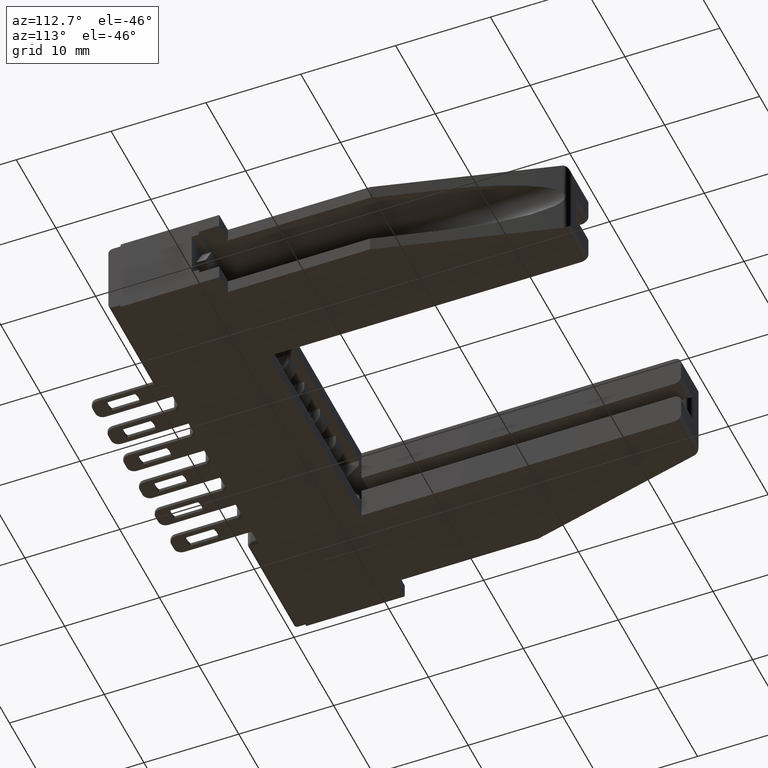
[diagram: clean part render]
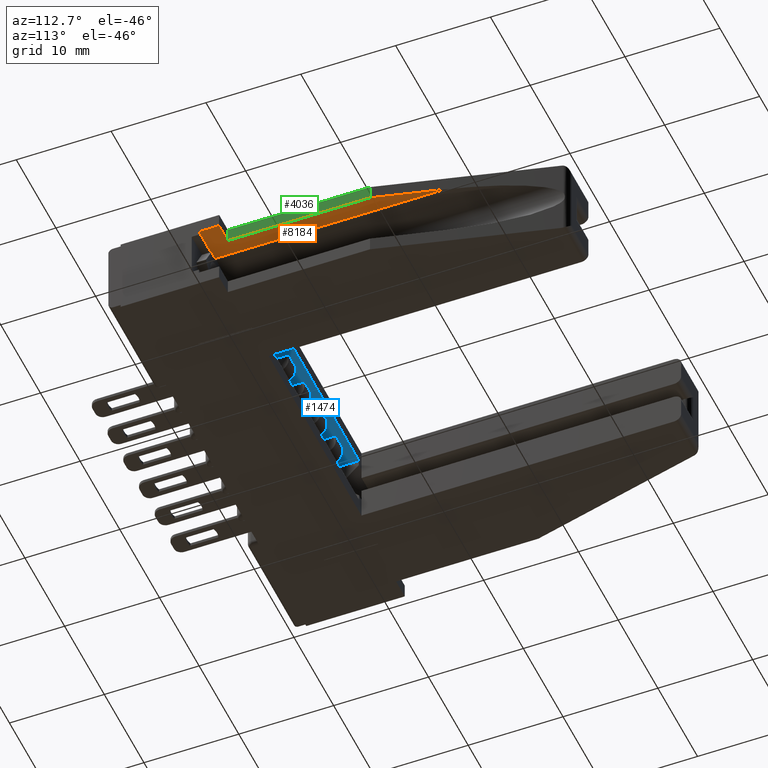
[diagram: same view with three faces highlighted in distinct colors, each labeled with its STEP entity id]
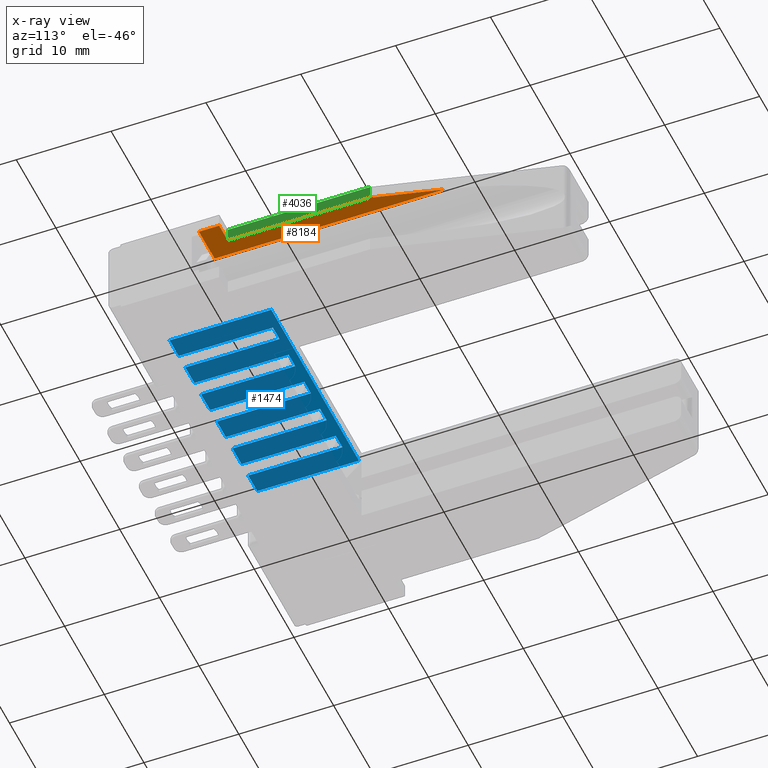
[diagram: x-ray of the same camera — body ghosted, the three highlighted faces saturated]
A machine part, auxiliary view with three faces highlighted in distinct colors.
The next image is the same camera in x-ray (body ghosted, the three faces saturated) — at least one of them is partly hidden behind the body in this view.
Their STEP definitions:

[orange] entity #8184 — the highlighted planar face has unit normal (0, 0, 1).
#93 = FACE_OUTER_BOUND ( 'NONE', #7524, .T. ) ;
#161 = LINE ( 'NONE', #10610, #9420 ) ;
#331 = LINE ( 'NONE', #9062, #10338 ) ;
#597 = DIRECTION ( 'NONE',  ( 4.211209965453280200E-016, 1.000000000000000000, 1.690917325168900100E-017 ) ) ;
#1309 = EDGE_CURVE ( 'NONE', #1538, #10528, #7996, .T. ) ;
#1469 = CARTESIAN_POINT ( 'NONE',  ( 0.0000000000000000000, 0.2099999999999999100, -0.2839999999999999700 ) ) ;
#1538 = VERTEX_POINT ( 'NONE', #4783 ) ;
#1719 = EDGE_CURVE ( 'NONE', #7004, #6549, #161, .T. ) ;
#1893 = CARTESIAN_POINT ( 'NONE',  ( 0.1549999999999998600, 1.079729729729725700, -0.2839999999999998100 ) ) ;
#2456 = ORIENTED_EDGE ( 'NONE', *, *, #3828, .T. ) ;
#2526 = CARTESIAN_POINT ( 'NONE',  ( 0.08600000000000011800, 0.7999999999999976000, -0.2840000000000000900 ) ) ;
#2564 = DIRECTION ( 'NONE',  ( -4.500600642748225000E-016, -1.000000000000000000, -1.690917325168896400E-017 ) ) ;
#2679 = ORIENTED_EDGE ( 'NONE', *, *, #3245, .T. ) ;
#2873 = LINE ( 'NONE', #1469, #5914 ) ;
#3245 = EDGE_CURVE ( 'NONE', #4101, #7004, #7802, .T. ) ;
#3519 = CARTESIAN_POINT ( 'NONE',  ( 0.0000000000000000000, -0.3075443462566648200, -0.2839999999999998100 ) ) ;
#3626 = DIRECTION ( 'NONE',  ( 1.000000000000000000, 4.211209965453250600E-016, 2.218671295934087800E-031 ) ) ;
#3828 = EDGE_CURVE ( 'NONE', #7875, #10528, #2873, .T. ) ;
#4101 = VERTEX_POINT ( 'NONE', #4484 ) ;
#4277 = ORIENTED_EDGE ( 'NONE', *, *, #1719, .T. ) ;
#4287 = CARTESIAN_POINT ( 'NONE',  ( 0.0000000000000000000, 0.2099999999999999100, -0.2839999999999999700 ) ) ;
#4484 = CARTESIAN_POINT ( 'NONE',  ( 0.1549999999999998600, 0.1259999999999999500, -0.2839999999999998100 ) ) ;
#4783 = CARTESIAN_POINT ( 'NONE',  ( 0.0000000000000000000, 0.1259999999999999500, -0.2839999999999999200 ) ) ;
#5140 = ORIENTED_EDGE ( 'NONE', *, *, #10056, .T. ) ;
#5315 = CARTESIAN_POINT ( 'NONE',  ( 0.1549999999999998600, -0.3075443462566648200, -0.2839999999999999700 ) ) ;
#5470 = CARTESIAN_POINT ( 'NONE',  ( -0.2220049579111977000, -0.3075443462566648200, -0.2840000000000000900 ) ) ;
#5618 = VECTOR ( 'NONE', #8993, 39.37007874015748100 ) ;
#5738 = AXIS2_PLACEMENT_3D ( 'NONE', #5470, #9188, #8238 ) ;
#5854 = LINE ( 'NONE', #2526, #11501 ) ;
#5914 = VECTOR ( 'NONE', #5997, 39.37007874015748100 ) ;
#5997 = DIRECTION ( 'NONE',  ( -1.000000000000000000, -4.211209965453250600E-016, -2.218671295934087800E-031 ) ) ;
#5999 = DIRECTION ( 'NONE',  ( -0.2394884713086047100, -0.9708992080078484600, -1.641710291813239300E-017 ) ) ;
#6362 = ORIENTED_EDGE ( 'NONE', *, *, #1309, .F. ) ;
#6549 = VERTEX_POINT ( 'NONE', #7451 ) ;
#7004 = VERTEX_POINT ( 'NONE', #1893 ) ;
#7451 = CARTESIAN_POINT ( 'NONE',  ( 0.08600000000000011800, 0.7999999999999976000, -0.2840000000000000900 ) ) ;
#7524 = EDGE_LOOP ( 'NONE', ( #2456, #6362, #5140, #2679, #4277, #9110 ) ) ;
#7802 = LINE ( 'NONE', #5315, #5618 ) ;
#7875 = VERTEX_POINT ( 'NONE', #11490 ) ;
#7996 = LINE ( 'NONE', #3519, #10183 ) ;
#8184 = ADVANCED_FACE ( 'NONE', ( #93 ), #10155, .F. ) ;
#8238 = DIRECTION ( 'NONE',  ( -1.000000000000000000, -4.211209965453250600E-016, -2.218671295934087800E-031 ) ) ;
#8993 = DIRECTION ( 'NONE',  ( 4.211209965453280200E-016, 1.000000000000000000, 1.690917325168900100E-017 ) ) ;
#9062 = CARTESIAN_POINT ( 'NONE',  ( -0.2220049579111977000, 0.1259999999999998100, -0.2839999999999998100 ) ) ;
#9110 = ORIENTED_EDGE ( 'NONE', *, *, #11212, .T. ) ;
#9188 = DIRECTION ( 'NONE',  ( 2.289879374839175700E-031, -1.690917325168891800E-017, -1.000000000000000000 ) ) ;
#9420 = VECTOR ( 'NONE', #5999, 39.37007874015748100 ) ;
#10056 = EDGE_CURVE ( 'NONE', #1538, #4101, #331, .T. ) ;
#10155 = PLANE ( 'NONE',  #5738 ) ;
#10183 = VECTOR ( 'NONE', #597, 39.37007874015748100 ) ;
#10338 = VECTOR ( 'NONE', #3626, 39.37007874015748100 ) ;
#10528 = VERTEX_POINT ( 'NONE', #4287 ) ;
#10610 = CARTESIAN_POINT ( 'NONE',  ( 0.2710000000000004600, 1.549999999999998700, -0.2839999999999998100 ) ) ;
#11212 = EDGE_CURVE ( 'NONE', #6549, #7875, #5854, .T. ) ;
#11490 = CARTESIAN_POINT ( 'NONE',  ( 0.08600000000000011800, 0.2099999999999999100, -0.2839999999999998100 ) ) ;
#11501 = VECTOR ( 'NONE', #2564, 39.37007874015748100 ) ;

[blue] entity #1474 — the highlighted planar face has unit normal (0, 0, 1).
#74 = VERTEX_POINT ( 'NONE', #822 ) ;
#80 = VERTEX_POINT ( 'NONE', #3491 ) ;
#107 = ORIENTED_EDGE ( 'NONE', *, *, #11847, .T. ) ;
#133 = VERTEX_POINT ( 'NONE', #2409 ) ;
#282 = DIRECTION ( 'NONE',  ( -0.0000000000000000000, 1.000000000000000000, -0.0000000000000000000 ) ) ;
#391 = EDGE_CURVE ( 'NONE', #7814, #3270, #8003, .T. ) ;
#429 = DIRECTION ( 'NONE',  ( -1.000000000000000000, 0.0000000000000000000, 1.897116662266849500E-016 ) ) ;
#453 = CARTESIAN_POINT ( 'NONE',  ( 0.5760000000000004000, 0.05099999999999999700, -0.06400000000000014000 ) ) ;
#634 = CARTESIAN_POINT ( 'NONE',  ( 0.4860000000000004300, 0.4419999999999999500, -0.06399999999999989000 ) ) ;
#678 = CARTESIAN_POINT ( 'NONE',  ( 1.200000000000000400, 0.1160000000000000100, -0.06400000000000014000 ) ) ;
#731 = CARTESIAN_POINT ( 'NONE',  ( 0.9540000000000004000, 0.1160000000000000100, -0.06400000000000012600 ) ) ;
#822 = CARTESIAN_POINT ( 'NONE',  ( 0.6420000000000004600, 0.05099999999999999700, -0.06399999999999989000 ) ) ;
#883 = VECTOR ( 'NONE', #6453, 39.37007874015748100 ) ;
#932 = ORIENTED_EDGE ( 'NONE', *, *, #2351, .T. ) ;
#1061 = CARTESIAN_POINT ( 'NONE',  ( 0.4860000000000004300, 0.1160000000000000100, -0.06400000000000012600 ) ) ;
#1155 = EDGE_CURVE ( 'NONE', #7162, #8588, #3812, .T. ) ;
#1169 = CARTESIAN_POINT ( 'NONE',  ( 0.5760000000000004000, 0.4729999999999999800, -0.06400000000000014000 ) ) ;
#1219 = CARTESIAN_POINT ( 'NONE',  ( 1.356000000000000500, 0.4419999999999999500, -0.06399999999999989000 ) ) ;
#1378 = EDGE_CURVE ( 'NONE', #7162, #74, #6392, .T. ) ;
#1382 = ORIENTED_EDGE ( 'NONE', *, *, #7799, .T. ) ;
#1474 = ADVANCED_FACE ( 'NONE', ( #5508 ), #5561, .F. ) ;
#1510 = CARTESIAN_POINT ( 'NONE',  ( 1.044000000000000500, 0.1160000000000000100, -0.06400000000000014000 ) ) ;
#1565 = DIRECTION ( 'NONE',  ( -0.0000000000000000000, 1.000000000000000000, -0.0000000000000000000 ) ) ;
#1813 = LINE ( 'NONE', #11024, #9505 ) ;
#1867 = ORIENTED_EDGE ( 'NONE', *, *, #1378, .T. ) ;
#1869 = DIRECTION ( 'NONE',  ( 1.000000000000000000, 0.0000000000000000000, 0.0000000000000000000 ) ) ;
#2053 = CARTESIAN_POINT ( 'NONE',  ( 0.7320000000000004300, 0.05099999999999999700, -0.06399999999999989000 ) ) ;
#2072 = VERTEX_POINT ( 'NONE', #10127 ) ;
#2117 = LINE ( 'NONE', #5490, #3002 ) ;
#2214 = EDGE_CURVE ( 'NONE', #4013, #8747, #6371, .T. ) ;
#2324 = VERTEX_POINT ( 'NONE', #2620 ) ;
#2351 = EDGE_CURVE ( 'NONE', #11693, #9336, #8546, .T. ) ;
#2356 = EDGE_CURVE ( 'NONE', #133, #7412, #7816, .T. ) ;
#2398 = VERTEX_POINT ( 'NONE', #7703 ) ;
#2409 = CARTESIAN_POINT ( 'NONE',  ( 1.356000000000000500, 0.05100000000000001800, -0.06399999999999989000 ) ) ;
#2549 = VERTEX_POINT ( 'NONE', #6452 ) ;
#2571 = EDGE_CURVE ( 'NONE', #2072, #7814, #9246, .T. ) ;
#2585 = CARTESIAN_POINT ( 'NONE',  ( 1.044000000000000500, 0.05099999999999999700, -0.06399999999999989000 ) ) ;
#2594 = VECTOR ( 'NONE', #6991, 39.37007874015748100 ) ;
#2620 = CARTESIAN_POINT ( 'NONE',  ( 0.5760000000000004000, 0.4419999999999999500, -0.06399999999999989000 ) ) ;
#2631 = LINE ( 'NONE', #10329, #6560 ) ;
#2635 = ORIENTED_EDGE ( 'NONE', *, *, #10425, .T. ) ;
#2704 = CARTESIAN_POINT ( 'NONE',  ( 0.6420000000000004600, 0.4419999999999999500, -0.06399999999999989000 ) ) ;
#2745 = DIRECTION ( 'NONE',  ( -1.000000000000000000, 0.0000000000000000000, 1.897116662266849500E-016 ) ) ;
#2758 = LINE ( 'NONE', #4746, #10451 ) ;
#2783 = DIRECTION ( 'NONE',  ( -0.0000000000000000000, 1.000000000000000000, -0.0000000000000000000 ) ) ;
#3002 = VECTOR ( 'NONE', #2783, 39.37007874015748100 ) ;
#3024 = DIRECTION ( 'NONE',  ( -0.0000000000000000000, 1.000000000000000000, -0.0000000000000000000 ) ) ;
#3249 = DIRECTION ( 'NONE',  ( -1.000000000000000000, 0.0000000000000000000, 1.897116662266849500E-016 ) ) ;
#3270 = VERTEX_POINT ( 'NONE', #11729 ) ;
#3282 = ORIENTED_EDGE ( 'NONE', *, *, #2214, .F. ) ;
#3302 = VECTOR ( 'NONE', #9871, 39.37007874015748100 ) ;
#3335 = ORIENTED_EDGE ( 'NONE', *, *, #8026, .F. ) ;
#3469 = VERTEX_POINT ( 'NONE', #5711 ) ;
#3491 = CARTESIAN_POINT ( 'NONE',  ( 0.9540000000000004000, 0.05099999999999999700, -0.06399999999999989000 ) ) ;
#3501 = DIRECTION ( 'NONE',  ( 1.000000000000000000, 0.0000000000000000000, 0.0000000000000000000 ) ) ;
#3506 = VECTOR ( 'NONE', #3249, 39.37007874015748100 ) ;
#3536 = LINE ( 'NONE', #7262, #10626 ) ;
#3544 = ORIENTED_EDGE ( 'NONE', *, *, #8126, .F. ) ;
#3703 = LINE ( 'NONE', #6115, #10371 ) ;
#3707 = EDGE_CURVE ( 'NONE', #8747, #7129, #7943, .T. ) ;
#3812 = LINE ( 'NONE', #8493, #10899 ) ;
#3856 = ORIENTED_EDGE ( 'NONE', *, *, #1155, .F. ) ;
#4004 = AXIS2_PLACEMENT_3D ( 'NONE', #8358, #11234, #4663 ) ;
#4013 = VERTEX_POINT ( 'NONE', #2585 ) ;
#4037 = LINE ( 'NONE', #7978, #10405 ) ;
#4364 = DIRECTION ( 'NONE',  ( -1.000000000000000000, 0.0000000000000000000, 1.897116662266849500E-016 ) ) ;
#4554 = VERTEX_POINT ( 'NONE', #9960 ) ;
#4663 = DIRECTION ( 'NONE',  ( 1.000000000000000000, 0.0000000000000000000, -1.897116662266849500E-016 ) ) ;
#4746 = CARTESIAN_POINT ( 'NONE',  ( 0.6420000000000004600, 0.1160000000000000100, -0.06400000000000012600 ) ) ;
#4856 = CARTESIAN_POINT ( 'NONE',  ( 0.8880000000000004600, 0.05099999999999999700, -0.06399999999999989000 ) ) ;
#4901 = EDGE_CURVE ( 'NONE', #74, #10697, #2758, .T. ) ;
#4913 = VECTOR ( 'NONE', #7216, 39.37007874015748100 ) ;
#4937 = EDGE_CURVE ( 'NONE', #133, #8255, #7983, .T. ) ;
#4978 = DIRECTION ( 'NONE',  ( 1.000000000000000000, 0.0000000000000000000, 0.0000000000000000000 ) ) ;
#5263 = LINE ( 'NONE', #8498, #9166 ) ;
#5402 = CARTESIAN_POINT ( 'NONE',  ( 0.4860000000000004300, 0.4729999999999999800, -0.06400000000000012600 ) ) ;
#5490 = CARTESIAN_POINT ( 'NONE',  ( 1.266000000000000500, 0.1160000000000000100, -0.06400000000000012600 ) ) ;
#5508 = FACE_OUTER_BOUND ( 'NONE', #7354, .T. ) ;
#5517 = VERTEX_POINT ( 'NONE', #4856 ) ;
#5561 = PLANE ( 'NONE',  #4004 ) ;
#5595 = VECTOR ( 'NONE', #3501, 39.37007874015748100 ) ;
#5678 = DIRECTION ( 'NONE',  ( 1.000000000000000000, 0.0000000000000000000, 0.0000000000000000000 ) ) ;
#5694 = DIRECTION ( 'NONE',  ( -1.000000000000000000, 0.0000000000000000000, 1.897116662266849500E-016 ) ) ;
#5711 = CARTESIAN_POINT ( 'NONE',  ( 0.5760000000000004000, 0.05099999999999999700, -0.06400000000000008500 ) ) ;
#5790 = CARTESIAN_POINT ( 'NONE',  ( 1.110000000000000500, 0.4419999999999999500, -0.06399999999999989000 ) ) ;
#5795 = DIRECTION ( 'NONE',  ( -0.0000000000000000000, 1.000000000000000000, -0.0000000000000000000 ) ) ;
#5852 = CARTESIAN_POINT ( 'NONE',  ( 0.5760000000000004000, 0.05099999999999999700, -0.06400000000000014000 ) ) ;
#5892 = LINE ( 'NONE', #634, #5595 ) ;
#5927 = VECTOR ( 'NONE', #5795, 39.37007874015748100 ) ;
#5976 = ORIENTED_EDGE ( 'NONE', *, *, #2571, .F. ) ;
#6115 = CARTESIAN_POINT ( 'NONE',  ( 0.4860000000000004300, 0.4419999999999999500, -0.06399999999999989000 ) ) ;
#6117 = LINE ( 'NONE', #1169, #9009 ) ;
#6176 = LINE ( 'NONE', #7088, #8067 ) ;
#6195 = DIRECTION ( 'NONE',  ( 1.000000000000000000, 0.0000000000000000000, 0.0000000000000000000 ) ) ;
#6216 = VECTOR ( 'NONE', #9521, 39.37007874015748100 ) ;
#6371 = LINE ( 'NONE', #1510, #2594 ) ;
#6392 = LINE ( 'NONE', #9121, #883 ) ;
#6452 = CARTESIAN_POINT ( 'NONE',  ( 0.7980000000000003800, 0.4419999999999999500, -0.06399999999999989000 ) ) ;
#6453 = DIRECTION ( 'NONE',  ( -1.000000000000000000, 0.0000000000000000000, 1.897116662266849500E-016 ) ) ;
#6560 = VECTOR ( 'NONE', #2745, 39.37007874015748100 ) ;
#6840 = CARTESIAN_POINT ( 'NONE',  ( 0.7320000000000004300, 0.4419999999999999500, -0.06400000000000014000 ) ) ;
#6991 = DIRECTION ( 'NONE',  ( -0.0000000000000000000, 1.000000000000000000, -0.0000000000000000000 ) ) ;
#7050 = DIRECTION ( 'NONE',  ( -0.0000000000000000000, 1.000000000000000000, -0.0000000000000000000 ) ) ;
#7088 = CARTESIAN_POINT ( 'NONE',  ( 1.110000000000000500, 0.1160000000000000100, -0.06400000000000012600 ) ) ;
#7129 = VERTEX_POINT ( 'NONE', #5790 ) ;
#7162 = VERTEX_POINT ( 'NONE', #2053 ) ;
#7216 = DIRECTION ( 'NONE',  ( -0.0000000000000000000, 1.000000000000000000, -0.0000000000000000000 ) ) ;
#7262 = CARTESIAN_POINT ( 'NONE',  ( 0.5760000000000004000, 0.1160000000000000100, -0.06400000000000014000 ) ) ;
#7325 = VERTEX_POINT ( 'NONE', #10598 ) ;
#7354 = EDGE_LOOP ( 'NONE', ( #10053, #11058, #11608, #7643, #5976, #11252, #8187, #10057, #3282, #107, #11443, #8618, #3335, #10544, #1382, #9015, #3856, #1867, #8828, #3544, #10655, #2635, #932, #11849 ) ) ;
#7408 = EDGE_CURVE ( 'NONE', #80, #2398, #10825, .T. ) ;
#7412 = VERTEX_POINT ( 'NONE', #10007 ) ;
#7425 = CARTESIAN_POINT ( 'NONE',  ( 1.044000000000000500, 0.4419999999999999500, -0.06400000000000014000 ) ) ;
#7432 = EDGE_CURVE ( 'NONE', #5517, #9494, #4037, .T. ) ;
#7482 = VECTOR ( 'NONE', #282, 39.37007874015748100 ) ;
#7501 = VECTOR ( 'NONE', #4978, 39.37007874015748100 ) ;
#7626 = CARTESIAN_POINT ( 'NONE',  ( 0.4860000000000004300, 0.4419999999999999500, -0.06399999999999989000 ) ) ;
#7631 = EDGE_CURVE ( 'NONE', #8255, #3270, #2117, .T. ) ;
#7643 = ORIENTED_EDGE ( 'NONE', *, *, #391, .F. ) ;
#7686 = DIRECTION ( 'NONE',  ( -0.0000000000000000000, 1.000000000000000000, -0.0000000000000000000 ) ) ;
#7703 = CARTESIAN_POINT ( 'NONE',  ( 0.9540000000000002900, 0.4419999999999999500, -0.06399999999999989000 ) ) ;
#7799 = EDGE_CURVE ( 'NONE', #9494, #2549, #8923, .T. ) ;
#7814 = VERTEX_POINT ( 'NONE', #9329 ) ;
#7816 = LINE ( 'NONE', #1219, #6216 ) ;
#7880 = CARTESIAN_POINT ( 'NONE',  ( 0.8880000000000004600, 0.1160000000000000100, -0.06400000000000014000 ) ) ;
#7943 = LINE ( 'NONE', #10537, #7501 ) ;
#7978 = CARTESIAN_POINT ( 'NONE',  ( 0.5760000000000004000, 0.05099999999999999700, -0.06400000000000014000 ) ) ;
#7983 = LINE ( 'NONE', #5852, #8271 ) ;
#8003 = LINE ( 'NONE', #7626, #11932 ) ;
#8026 = EDGE_CURVE ( 'NONE', #5517, #4554, #9652, .T. ) ;
#8067 = VECTOR ( 'NONE', #1565, 39.37007874015748100 ) ;
#8084 = EDGE_CURVE ( 'NONE', #7325, #7129, #6176, .T. ) ;
#8126 = EDGE_CURVE ( 'NONE', #2324, #10697, #5892, .T. ) ;
#8187 = ORIENTED_EDGE ( 'NONE', *, *, #8084, .T. ) ;
#8207 = DIRECTION ( 'NONE',  ( -0.0000000000000000000, 1.000000000000000000, -0.0000000000000000000 ) ) ;
#8255 = VERTEX_POINT ( 'NONE', #11966 ) ;
#8262 = EDGE_CURVE ( 'NONE', #8588, #2549, #1813, .T. ) ;
#8271 = VECTOR ( 'NONE', #429, 39.37007874015748100 ) ;
#8358 = CARTESIAN_POINT ( 'NONE',  ( 0.5760000000000004000, 0.1160000000000000100, -0.06400000000000014000 ) ) ;
#8428 = LINE ( 'NONE', #453, #3506 ) ;
#8493 = CARTESIAN_POINT ( 'NONE',  ( 0.7320000000000004300, 0.1160000000000000100, -0.06400000000000014000 ) ) ;
#8498 = CARTESIAN_POINT ( 'NONE',  ( 0.5760000000000004000, 0.05099999999999999700, -0.06400000000000014000 ) ) ;
#8546 = LINE ( 'NONE', #1061, #5927 ) ;
#8588 = VERTEX_POINT ( 'NONE', #6840 ) ;
#8618 = ORIENTED_EDGE ( 'NONE', *, *, #8687, .F. ) ;
#8682 = CARTESIAN_POINT ( 'NONE',  ( 0.4860000000000004300, 0.05099999999999999700, -0.06400000000000008500 ) ) ;
#8687 = EDGE_CURVE ( 'NONE', #4554, #2398, #3703, .T. ) ;
#8747 = VERTEX_POINT ( 'NONE', #7425 ) ;
#8828 = ORIENTED_EDGE ( 'NONE', *, *, #4901, .T. ) ;
#8923 = LINE ( 'NONE', #11451, #7482 ) ;
#9009 = VECTOR ( 'NONE', #10483, 39.37007874015748100 ) ;
#9015 = ORIENTED_EDGE ( 'NONE', *, *, #8262, .F. ) ;
#9121 = CARTESIAN_POINT ( 'NONE',  ( 0.5760000000000004000, 0.05099999999999999700, -0.06400000000000014000 ) ) ;
#9166 = VECTOR ( 'NONE', #5694, 39.37007874015748100 ) ;
#9246 = LINE ( 'NONE', #678, #4913 ) ;
#9329 = CARTESIAN_POINT ( 'NONE',  ( 1.200000000000000400, 0.4419999999999999500, -0.06400000000000014000 ) ) ;
#9336 = VERTEX_POINT ( 'NONE', #5402 ) ;
#9365 = EDGE_CURVE ( 'NONE', #3469, #2324, #3536, .T. ) ;
#9494 = VERTEX_POINT ( 'NONE', #10237 ) ;
#9505 = VECTOR ( 'NONE', #1869, 39.37007874015748100 ) ;
#9521 = DIRECTION ( 'NONE',  ( -0.0000000000000000000, 1.000000000000000000, -0.0000000000000000000 ) ) ;
#9652 = LINE ( 'NONE', #7880, #9957 ) ;
#9871 = DIRECTION ( 'NONE',  ( -0.0000000000000000000, 1.000000000000000000, -0.0000000000000000000 ) ) ;
#9957 = VECTOR ( 'NONE', #7050, 39.37007874015748100 ) ;
#9960 = CARTESIAN_POINT ( 'NONE',  ( 0.8880000000000004600, 0.4419999999999999500, -0.06400000000000014000 ) ) ;
#10007 = CARTESIAN_POINT ( 'NONE',  ( 1.356000000000000500, 0.4729999999999999800, -0.06399999999999989000 ) ) ;
#10053 = ORIENTED_EDGE ( 'NONE', *, *, #2356, .F. ) ;
#10057 = ORIENTED_EDGE ( 'NONE', *, *, #3707, .F. ) ;
#10127 = CARTESIAN_POINT ( 'NONE',  ( 1.200000000000000400, 0.05099999999999999700, -0.06399999999999989000 ) ) ;
#10237 = CARTESIAN_POINT ( 'NONE',  ( 0.7980000000000003800, 0.05099999999999999700, -0.06399999999999989000 ) ) ;
#10329 = CARTESIAN_POINT ( 'NONE',  ( 0.5760000000000004000, 0.05099999999999999700, -0.06400000000000014000 ) ) ;
#10371 = VECTOR ( 'NONE', #6195, 39.37007874015748100 ) ;
#10405 = VECTOR ( 'NONE', #4364, 39.37007874015748100 ) ;
#10425 = EDGE_CURVE ( 'NONE', #3469, #11693, #8428, .T. ) ;
#10451 = VECTOR ( 'NONE', #3024, 39.37007874015748100 ) ;
#10483 = DIRECTION ( 'NONE',  ( 1.000000000000000000, -0.0000000000000000000, -1.897116662266849500E-016 ) ) ;
#10537 = CARTESIAN_POINT ( 'NONE',  ( 0.4860000000000004300, 0.4419999999999999500, -0.06399999999999989000 ) ) ;
#10544 = ORIENTED_EDGE ( 'NONE', *, *, #7432, .T. ) ;
#10598 = CARTESIAN_POINT ( 'NONE',  ( 1.110000000000000500, 0.05099999999999999700, -0.06399999999999989000 ) ) ;
#10626 = VECTOR ( 'NONE', #8207, 39.37007874015748100 ) ;
#10655 = ORIENTED_EDGE ( 'NONE', *, *, #9365, .F. ) ;
#10697 = VERTEX_POINT ( 'NONE', #2704 ) ;
#10774 = EDGE_CURVE ( 'NONE', #2072, #7325, #5263, .T. ) ;
#10825 = LINE ( 'NONE', #731, #3302 ) ;
#10899 = VECTOR ( 'NONE', #7686, 39.37007874015748100 ) ;
#11024 = CARTESIAN_POINT ( 'NONE',  ( 0.4860000000000004300, 0.4419999999999999500, -0.06399999999999989000 ) ) ;
#11058 = ORIENTED_EDGE ( 'NONE', *, *, #4937, .T. ) ;
#11234 = DIRECTION ( 'NONE',  ( 1.897116662266849500E-016, 0.0000000000000000000, 1.000000000000000000 ) ) ;
#11252 = ORIENTED_EDGE ( 'NONE', *, *, #10774, .T. ) ;
#11443 = ORIENTED_EDGE ( 'NONE', *, *, #7408, .T. ) ;
#11451 = CARTESIAN_POINT ( 'NONE',  ( 0.7980000000000003800, 0.1160000000000000100, -0.06400000000000012600 ) ) ;
#11608 = ORIENTED_EDGE ( 'NONE', *, *, #7631, .T. ) ;
#11693 = VERTEX_POINT ( 'NONE', #8682 ) ;
#11729 = CARTESIAN_POINT ( 'NONE',  ( 1.266000000000000500, 0.4419999999999999500, -0.06399999999999989000 ) ) ;
#11847 = EDGE_CURVE ( 'NONE', #4013, #80, #2631, .T. ) ;
#11849 = ORIENTED_EDGE ( 'NONE', *, *, #12010, .T. ) ;
#11932 = VECTOR ( 'NONE', #5678, 39.37007874015748100 ) ;
#11966 = CARTESIAN_POINT ( 'NONE',  ( 1.266000000000000500, 0.05099999999999999700, -0.06399999999999989000 ) ) ;
#12010 = EDGE_CURVE ( 'NONE', #9336, #7412, #6117, .T. ) ;

[green] entity #4036 — the highlighted planar face has unit normal (1, 0, -0).
#460 = EDGE_CURVE ( 'NONE', #11507, #6549, #6412, .T. ) ;
#1720 = VECTOR ( 'NONE', #9202, 39.37007874015748100 ) ;
#1747 = VERTEX_POINT ( 'NONE', #10649 ) ;
#2524 = VECTOR ( 'NONE', #10648, 39.37007874015748100 ) ;
#2526 = CARTESIAN_POINT ( 'NONE',  ( 0.08600000000000011800, 0.7999999999999976000, -0.2840000000000000900 ) ) ;
#2564 = DIRECTION ( 'NONE',  ( -4.500600642748225000E-016, -1.000000000000000000, -1.690917325168896400E-017 ) ) ;
#2792 = DIRECTION ( 'NONE',  ( -1.000000000000000000, 4.500600642748225000E-016, -2.076255138123910700E-031 ) ) ;
#3124 = ORIENTED_EDGE ( 'NONE', *, *, #11212, .F. ) ;
#3243 = ORIENTED_EDGE ( 'NONE', *, *, #460, .F. ) ;
#3254 = CARTESIAN_POINT ( 'NONE',  ( 0.08600000000000011800, 0.7999999999999976000, -0.3430000000000000300 ) ) ;
#3982 = ORIENTED_EDGE ( 'NONE', *, *, #5819, .T. ) ;
#4036 = ADVANCED_FACE ( 'NONE', ( #11712 ), #9175, .T. ) ;
#4804 = VECTOR ( 'NONE', #10471, 39.37007874015748100 ) ;
#4868 = CARTESIAN_POINT ( 'NONE',  ( 0.08600000000000011800, 0.7999999999999976000, -0.3430000000000000300 ) ) ;
#5469 = AXIS2_PLACEMENT_3D ( 'NONE', #10218, #2792, #6437 ) ;
#5717 = CARTESIAN_POINT ( 'NONE',  ( 0.08600000000000011800, 0.7999999999999976000, -0.3430000000000000300 ) ) ;
#5819 = EDGE_CURVE ( 'NONE', #1747, #7875, #9401, .T. ) ;
#5854 = LINE ( 'NONE', #2526, #11501 ) ;
#5877 = EDGE_LOOP ( 'NONE', ( #3124, #3243, #9360, #3982 ) ) ;
#6412 = LINE ( 'NONE', #5717, #4804 ) ;
#6437 = DIRECTION ( 'NONE',  ( -4.500600642748225000E-016, -1.000000000000000000, -1.690917325168896700E-017 ) ) ;
#6549 = VERTEX_POINT ( 'NONE', #7451 ) ;
#7451 = CARTESIAN_POINT ( 'NONE',  ( 0.08600000000000011800, 0.7999999999999976000, -0.2840000000000000900 ) ) ;
#7875 = VERTEX_POINT ( 'NONE', #11490 ) ;
#8685 = EDGE_CURVE ( 'NONE', #11507, #1747, #10939, .T. ) ;
#9175 = PLANE ( 'NONE',  #5469 ) ;
#9202 = DIRECTION ( 'NONE',  ( 1.972152263052529500E-031, 1.690917325168892100E-017, 1.000000000000000000 ) ) ;
#9244 = CARTESIAN_POINT ( 'NONE',  ( 0.08600000000000011800, 0.2099999999999999100, -0.3430000000000000300 ) ) ;
#9360 = ORIENTED_EDGE ( 'NONE', *, *, #8685, .T. ) ;
#9401 = LINE ( 'NONE', #9244, #1720 ) ;
#10218 = CARTESIAN_POINT ( 'NONE',  ( 0.08600000000000011800, 0.7999999999999976000, -0.3430000000000000300 ) ) ;
#10471 = DIRECTION ( 'NONE',  ( 1.972152263052529500E-031, 1.690917325168892100E-017, 1.000000000000000000 ) ) ;
#10648 = DIRECTION ( 'NONE',  ( -4.500600642748225000E-016, -1.000000000000000000, -1.690917325168896400E-017 ) ) ;
#10649 = CARTESIAN_POINT ( 'NONE',  ( 0.08600000000000011800, 0.2099999999999999100, -0.3430000000000000300 ) ) ;
#10939 = LINE ( 'NONE', #3254, #2524 ) ;
#11212 = EDGE_CURVE ( 'NONE', #6549, #7875, #5854, .T. ) ;
#11490 = CARTESIAN_POINT ( 'NONE',  ( 0.08600000000000011800, 0.2099999999999999100, -0.2839999999999998100 ) ) ;
#11501 = VECTOR ( 'NONE', #2564, 39.37007874015748100 ) ;
#11507 = VERTEX_POINT ( 'NONE', #4868 ) ;
#11712 = FACE_OUTER_BOUND ( 'NONE', #5877, .T. ) ;